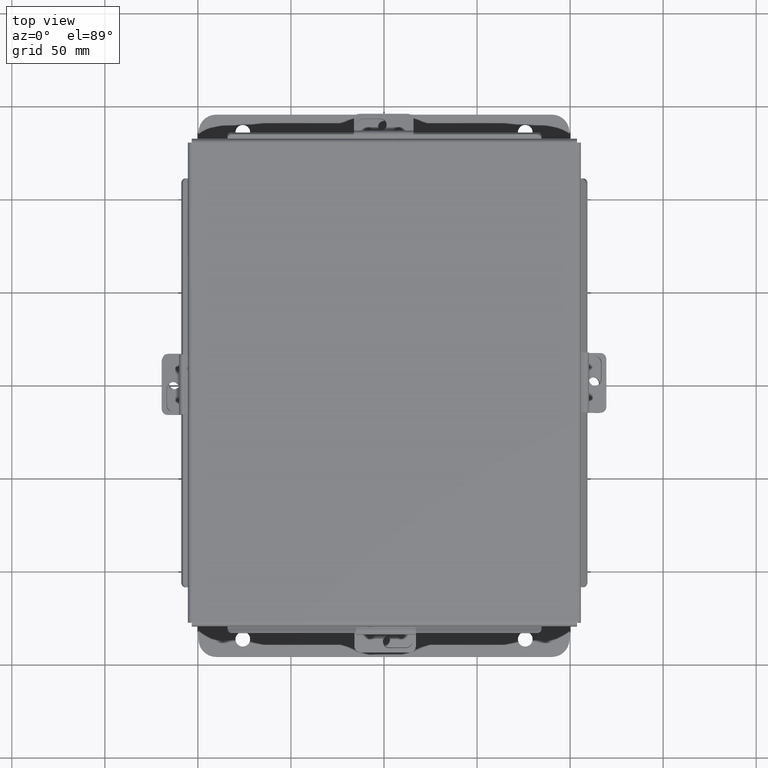
[diagram: clean part render]
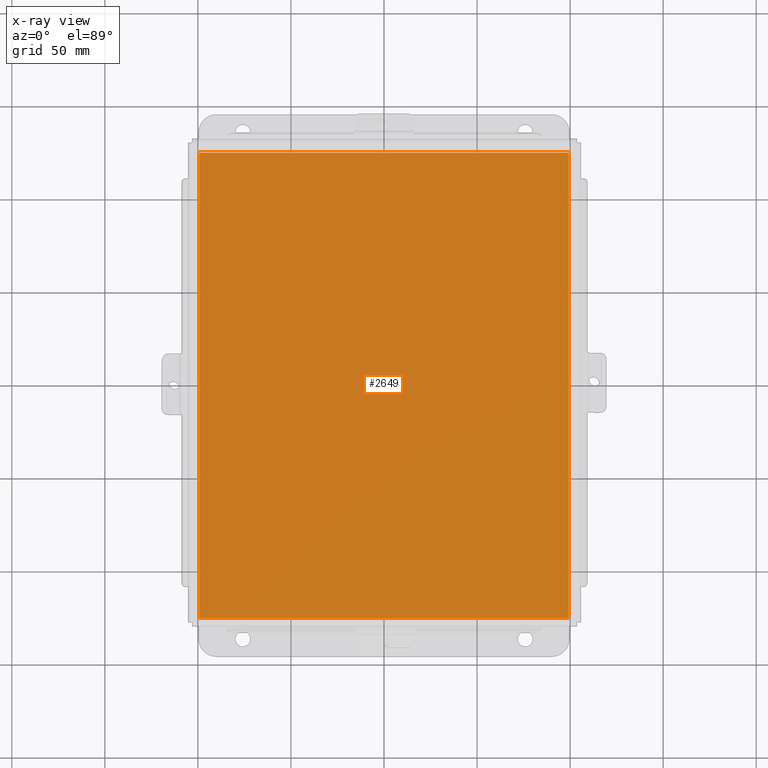
[diagram: x-ray — body ghosted, one internal face saturated and labeled with its STEP entity id]
A machine part, top view, then the same camera in x-ray: the body is ghosted and one INTERNAL B-rep face — a face not visible from any outside direction — is saturated and labeled: STEP entity #2649.
In plain terms, the highlighted planar face has unit normal (0, 0, -1).
Its self-contained STEP definition (entity closure, byte-faithful):
#239 = EDGE_CURVE ( 'NONE', #2002, #9485, #6950, .T. ) ;
#484 = CARTESIAN_POINT ( 'NONE',  ( 3.912300000000000100, 4.925299999999999100, 4.268512490100411300E-017 ) ) ;
#738 = VERTEX_POINT ( 'NONE', #484 ) ;
#1274 = ORIENTED_EDGE ( 'NONE', *, *, #1852, .T. ) ;
#1436 = EDGE_CURVE ( 'NONE', #738, #2515, #7472, .T. ) ;
#1700 = LINE ( 'NONE', #8879, #8382 ) ;
#1852 = EDGE_CURVE ( 'NONE', #738, #9485, #1700, .T. ) ;
#2002 = VERTEX_POINT ( 'NONE', #2594 ) ;
#2212 = FACE_OUTER_BOUND ( 'NONE', #5118, .T. ) ;
#2515 = VERTEX_POINT ( 'NONE', #5508 ) ;
#2594 = CARTESIAN_POINT ( 'NONE',  ( -3.912299999999999200, -4.925299999999999100, 7.256471233170698700E-016 ) ) ;
#2649 = ADVANCED_FACE ( 'NONE', ( #2212 ), #8725, .F. ) ;
#2912 = ORIENTED_EDGE ( 'NONE', *, *, #239, .F. ) ;
#3897 = DIRECTION ( 'NONE',  ( -1.000000000000000000, -0.0000000000000000000, -0.0000000000000000000 ) ) ;
#4299 = VECTOR ( 'NONE', #6537, 39.37007874015748100 ) ;
#4637 = LINE ( 'NONE', #5714, #4299 ) ;
#4994 = EDGE_CURVE ( 'NONE', #2002, #2515, #4637, .T. ) ;
#5014 = DIRECTION ( 'NONE',  ( -0.0000000000000000000, 1.000000000000000000, -8.208677865577646300E-017 ) ) ;
#5118 = EDGE_LOOP ( 'NONE', ( #9388, #1274, #2912, #5330 ) ) ;
#5330 = ORIENTED_EDGE ( 'NONE', *, *, #4994, .T. ) ;
#5498 = CARTESIAN_POINT ( 'NONE',  ( 0.0000000000000000000, 0.0000000000000000000, 0.0000000000000000000 ) ) ;
#5508 = CARTESIAN_POINT ( 'NONE',  ( 3.912300000000000100, -4.925300000000000000, 4.268512490100411300E-017 ) ) ;
#5692 = VECTOR ( 'NONE', #5014, 39.37007874015748100 ) ;
#5714 = CARTESIAN_POINT ( 'NONE',  ( -3.999999999999999600, -4.925300000000000000, 0.0000000000000000000 ) ) ;
#6329 = DIRECTION ( 'NONE',  ( 0.0000000000000000000, 0.0000000000000000000, -1.000000000000000000 ) ) ;
#6537 = DIRECTION ( 'NONE',  ( 1.000000000000000000, 0.0000000000000000000, 0.0000000000000000000 ) ) ;
#6544 = CARTESIAN_POINT ( 'NONE',  ( -3.912299999999999200, 4.925300000000000000, -8.537024980200822600E-017 ) ) ;
#6950 = LINE ( 'NONE', #9502, #5692 ) ;
#7024 = AXIS2_PLACEMENT_3D ( 'NONE', #5498, #6329, #9518 ) ;
#7472 = LINE ( 'NONE', #9446, #7818 ) ;
#7818 = VECTOR ( 'NONE', #9576, 39.37007874015748100 ) ;
#8382 = VECTOR ( 'NONE', #3897, 39.37007874015748100 ) ;
#8725 = PLANE ( 'NONE',  #7024 ) ;
#8879 = CARTESIAN_POINT ( 'NONE',  ( -3.999999999999999600, 4.925300000000000000, 0.0000000000000000000 ) ) ;
#9388 = ORIENTED_EDGE ( 'NONE', *, *, #1436, .F. ) ;
#9446 = CARTESIAN_POINT ( 'NONE',  ( 3.912300000000000100, 4.925300000000000000, 4.268512490100411300E-017 ) ) ;
#9485 = VERTEX_POINT ( 'NONE', #6544 ) ;
#9502 = CARTESIAN_POINT ( 'NONE',  ( -3.912299999999999200, -4.925300000000000000, 7.256471233170698700E-016 ) ) ;
#9518 = DIRECTION ( 'NONE',  ( -1.000000000000000000, 0.0000000000000000000, -0.0000000000000000000 ) ) ;
#9576 = DIRECTION ( 'NONE',  ( -0.0000000000000000000, -1.000000000000000000, -0.0000000000000000000 ) ) ;